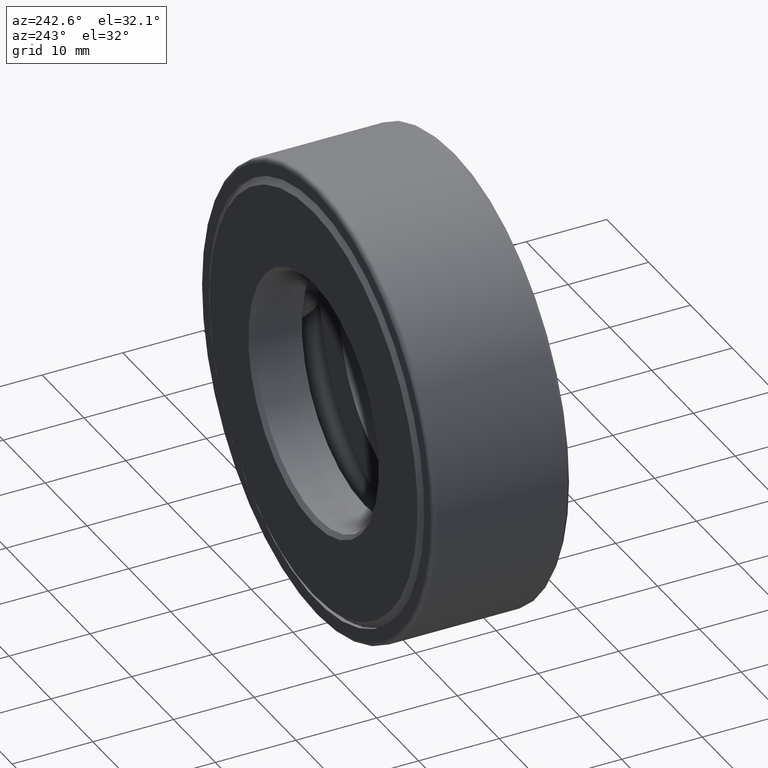
[diagram: clean part render]
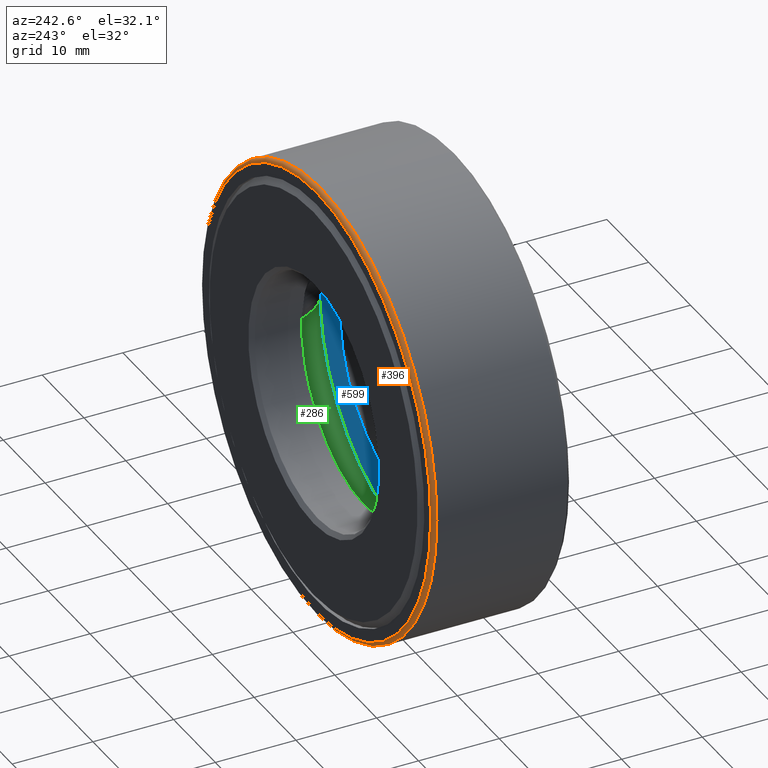
[diagram: same view with three faces highlighted in distinct colors, each labeled with its STEP entity id]
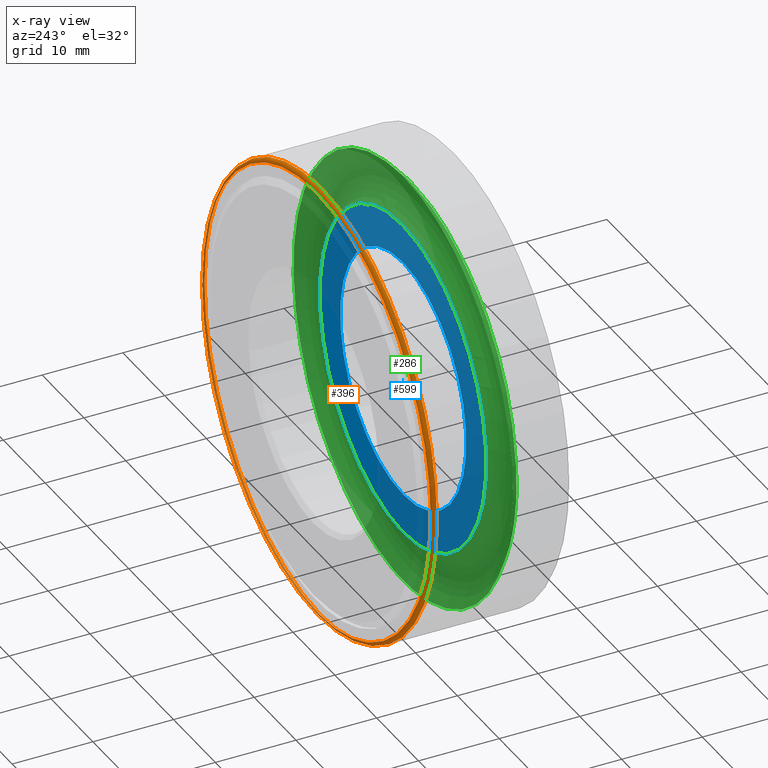
[diagram: x-ray of the same camera — body ghosted, the three highlighted faces saturated]
A machine part, auxiliary view with three faces highlighted in distinct colors.
The next image is the same camera in x-ray (body ghosted, the three faces saturated) — at least one of them is partly hidden behind the body in this view.
Their STEP definitions:

[orange] entity #396 — the highlighted toroidal blend (fillet) surface has major radius 27.2732 mm and minor (blend) radius 0.508 mm.
#5 = EDGE_LOOP ( 'NONE', ( #513 ) ) ;
#25 = EDGE_CURVE ( 'NONE', #436, #436, #109, .T. ) ;
#40 = CARTESIAN_POINT ( 'NONE',  ( 0.0000000000000000000, 0.6524999999999997500, 1.093750000000000000 ) ) ;
#97 = CARTESIAN_POINT ( 'NONE',  ( 0.0000000000000000000, 0.6524999999999997500, 0.0000000000000000000 ) ) ;
#109 = CIRCLE ( 'NONE', #446, 1.073750000000000000 ) ;
#148 = DIRECTION ( 'NONE',  ( 0.0000000000000000000, 0.0000000000000000000, 1.000000000000000000 ) ) ;
#176 = DIRECTION ( 'NONE',  ( 0.0000000000000000000, 0.0000000000000000000, 1.000000000000000000 ) ) ;
#184 = EDGE_CURVE ( 'NONE', #489, #489, #484, .T. ) ;
#186 = CARTESIAN_POINT ( 'NONE',  ( 0.0000000000000000000, 0.6724999999999998800, 1.073750000000000000 ) ) ;
#192 = DIRECTION ( 'NONE',  ( -0.0000000000000000000, 1.000000000000000000, -0.0000000000000000000 ) ) ;
#196 = ORIENTED_EDGE ( 'NONE', *, *, #184, .T. ) ;
#245 = AXIS2_PLACEMENT_3D ( 'NONE', #97, #192, #148 ) ;
#345 = FACE_OUTER_BOUND ( 'NONE', #479, .T. ) ;
#396 = ADVANCED_FACE ( 'NONE', ( #558, #345 ), #427, .T. ) ;
#413 = DIRECTION ( 'NONE',  ( -0.0000000000000000000, 1.000000000000000000, -0.0000000000000000000 ) ) ;
#427 = TOROIDAL_SURFACE ( 'NONE', #603, 1.073750000000000000, 0.02000000000000005900 ) ;
#436 = VERTEX_POINT ( 'NONE', #186 ) ;
#446 = AXIS2_PLACEMENT_3D ( 'NONE', #472, #464, #176 ) ;
#464 = DIRECTION ( 'NONE',  ( -0.0000000000000000000, 1.000000000000000000, -0.0000000000000000000 ) ) ;
#472 = CARTESIAN_POINT ( 'NONE',  ( 0.0000000000000000000, 0.6724999999999998800, 0.0000000000000000000 ) ) ;
#479 = EDGE_LOOP ( 'NONE', ( #196 ) ) ;
#484 = CIRCLE ( 'NONE', #245, 1.093750000000000000 ) ;
#489 = VERTEX_POINT ( 'NONE', #40 ) ;
#499 = DIRECTION ( 'NONE',  ( 0.0000000000000000000, 0.0000000000000000000, 1.000000000000000000 ) ) ;
#501 = CARTESIAN_POINT ( 'NONE',  ( 0.0000000000000000000, 0.6524999999999997500, 0.0000000000000000000 ) ) ;
#513 = ORIENTED_EDGE ( 'NONE', *, *, #25, .F. ) ;
#558 = FACE_OUTER_BOUND ( 'NONE', #5, .T. ) ;
#603 = AXIS2_PLACEMENT_3D ( 'NONE', #501, #413, #499 ) ;

[blue] entity #599 — the highlighted planar face has unit normal (0, -1, 0).
#15 = DIRECTION ( 'NONE',  ( -0.0000000000000000000, 1.000000000000000000, -0.0000000000000000000 ) ) ;
#45 = CARTESIAN_POINT ( 'NONE',  ( 0.0000000000000000000, 0.2500000000000000000, 0.5937500000000000000 ) ) ;
#71 = EDGE_CURVE ( 'NONE', #121, #121, #124, .T. ) ;
#78 = AXIS2_PLACEMENT_3D ( 'NONE', #338, #92, #530 ) ;
#86 = DIRECTION ( 'NONE',  ( 0.0000000000000000000, -0.0000000000000000000, -1.000000000000000000 ) ) ;
#92 = DIRECTION ( 'NONE',  ( -0.0000000000000000000, 1.000000000000000000, -0.0000000000000000000 ) ) ;
#121 = VERTEX_POINT ( 'NONE', #45 ) ;
#124 = CIRCLE ( 'NONE', #78, 0.5937500000000000000 ) ;
#134 = CIRCLE ( 'NONE', #463, 0.7834999999999999700 ) ;
#157 = VERTEX_POINT ( 'NONE', #434 ) ;
#199 = AXIS2_PLACEMENT_3D ( 'NONE', #226, #284, #86 ) ;
#217 = PLANE ( 'NONE',  #199 ) ;
#226 = CARTESIAN_POINT ( 'NONE',  ( -8.998181797313131200E-017, 0.2499999999999999700, 0.0000000000000000000 ) ) ;
#284 = DIRECTION ( 'NONE',  ( 0.0000000000000000000, -1.000000000000000000, 0.0000000000000000000 ) ) ;
#314 = FACE_BOUND ( 'NONE', #502, .T. ) ;
#333 = EDGE_CURVE ( 'NONE', #157, #157, #134, .T. ) ;
#338 = CARTESIAN_POINT ( 'NONE',  ( 0.0000000000000000000, 0.2500000000000000000, 0.0000000000000000000 ) ) ;
#350 = EDGE_LOOP ( 'NONE', ( #412 ) ) ;
#397 = CARTESIAN_POINT ( 'NONE',  ( 0.0000000000000000000, 0.2499999999999999200, 0.0000000000000000000 ) ) ;
#412 = ORIENTED_EDGE ( 'NONE', *, *, #333, .T. ) ;
#434 = CARTESIAN_POINT ( 'NONE',  ( 0.0000000000000000000, 0.2499999999999999200, 0.7834999999999999700 ) ) ;
#463 = AXIS2_PLACEMENT_3D ( 'NONE', #397, #15, #491 ) ;
#465 = ORIENTED_EDGE ( 'NONE', *, *, #71, .F. ) ;
#491 = DIRECTION ( 'NONE',  ( 0.0000000000000000000, 0.0000000000000000000, 1.000000000000000000 ) ) ;
#502 = EDGE_LOOP ( 'NONE', ( #465 ) ) ;
#530 = DIRECTION ( 'NONE',  ( 0.0000000000000000000, 0.0000000000000000000, 1.000000000000000000 ) ) ;
#534 = FACE_OUTER_BOUND ( 'NONE', #350, .T. ) ;
#599 = ADVANCED_FACE ( 'NONE', ( #314, #534 ), #217, .F. ) ;

[green] entity #286 — the highlighted toroidal blend (fillet) surface has major radius 23.0759 mm and minor (blend) radius 3.9687 mm.
#15 = DIRECTION ( 'NONE',  ( -0.0000000000000000000, 1.000000000000000000, -0.0000000000000000000 ) ) ;
#49 = FACE_OUTER_BOUND ( 'NONE', #259, .T. ) ;
#61 = ORIENTED_EDGE ( 'NONE', *, *, #333, .F. ) ;
#87 = EDGE_CURVE ( 'NONE', #152, #152, #602, .T. ) ;
#104 = DIRECTION ( 'NONE',  ( -0.0000000000000000000, 1.000000000000000000, -0.0000000000000000000 ) ) ;
#134 = CIRCLE ( 'NONE', #463, 0.7834999999999999700 ) ;
#152 = VERTEX_POINT ( 'NONE', #274 ) ;
#157 = VERTEX_POINT ( 'NONE', #434 ) ;
#252 = ORIENTED_EDGE ( 'NONE', *, *, #87, .T. ) ;
#257 = AXIS2_PLACEMENT_3D ( 'NONE', #575, #104, #541 ) ;
#259 = EDGE_LOOP ( 'NONE', ( #252 ) ) ;
#274 = CARTESIAN_POINT ( 'NONE',  ( 0.0000000000000000000, 0.2499999999999998900, 1.033499999999999900 ) ) ;
#286 = ADVANCED_FACE ( 'NONE', ( #316, #49 ), #528, .F. ) ;
#316 = FACE_OUTER_BOUND ( 'NONE', #548, .T. ) ;
#333 = EDGE_CURVE ( 'NONE', #157, #157, #134, .T. ) ;
#339 = AXIS2_PLACEMENT_3D ( 'NONE', #437, #390, #432 ) ;
#390 = DIRECTION ( 'NONE',  ( -0.0000000000000000000, 1.000000000000000000, -0.0000000000000000000 ) ) ;
#397 = CARTESIAN_POINT ( 'NONE',  ( 0.0000000000000000000, 0.2499999999999999200, 0.0000000000000000000 ) ) ;
#432 = DIRECTION ( 'NONE',  ( 0.0000000000000000000, 0.0000000000000000000, 1.000000000000000000 ) ) ;
#434 = CARTESIAN_POINT ( 'NONE',  ( 0.0000000000000000000, 0.2499999999999999200, 0.7834999999999999700 ) ) ;
#437 = CARTESIAN_POINT ( 'NONE',  ( 0.0000000000000000000, 0.2499999999999998900, 0.0000000000000000000 ) ) ;
#463 = AXIS2_PLACEMENT_3D ( 'NONE', #397, #15, #491 ) ;
#491 = DIRECTION ( 'NONE',  ( 0.0000000000000000000, 0.0000000000000000000, 1.000000000000000000 ) ) ;
#528 = TOROIDAL_SURFACE ( 'NONE', #257, 0.9084999999999998600, 0.1562499999999999700 ) ;
#541 = DIRECTION ( 'NONE',  ( 0.0000000000000000000, 0.0000000000000000000, 1.000000000000000000 ) ) ;
#548 = EDGE_LOOP ( 'NONE', ( #61 ) ) ;
#575 = CARTESIAN_POINT ( 'NONE',  ( 0.0000000000000000000, 0.3437500000000000000, 0.0000000000000000000 ) ) ;
#602 = CIRCLE ( 'NONE', #339, 1.033499999999999900 ) ;